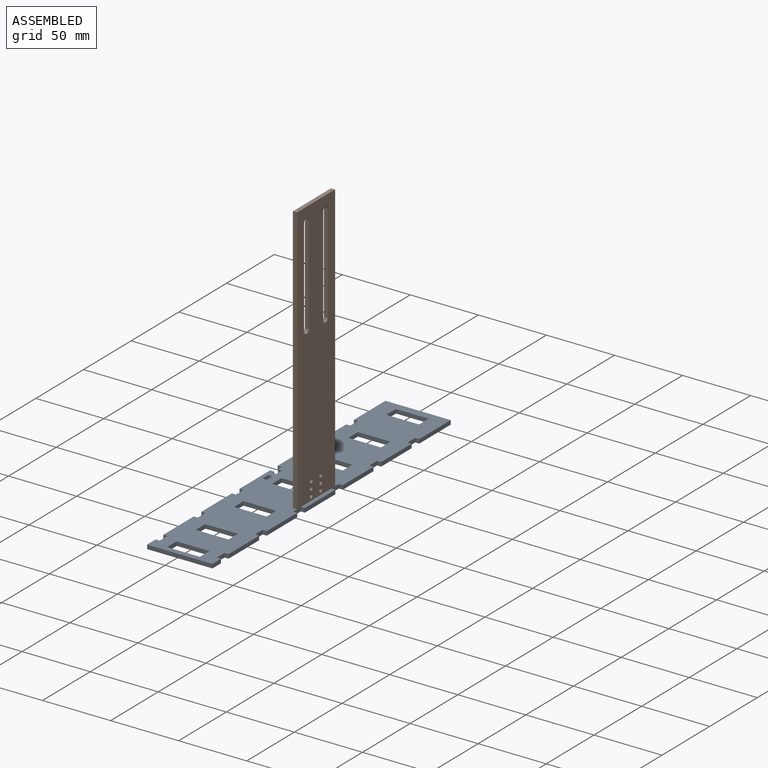
[diagram: assembled view]
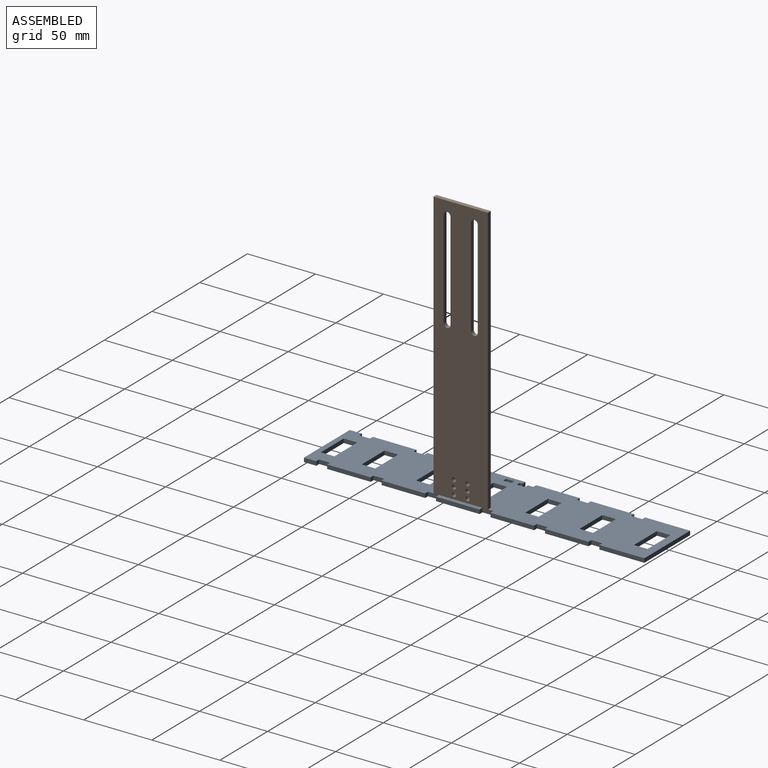
[diagram: assembled view, second angle]
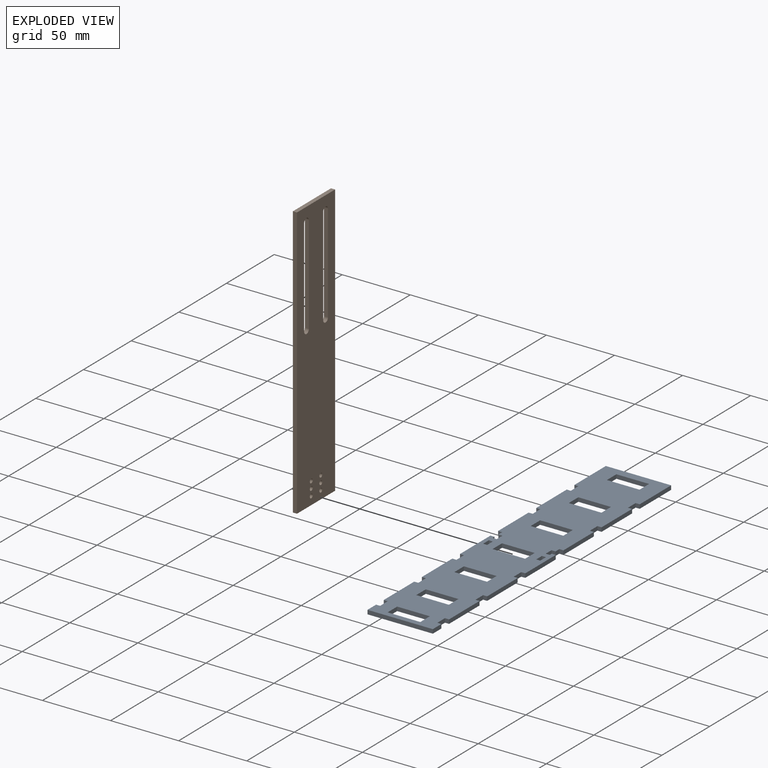
[diagram: exploded view]
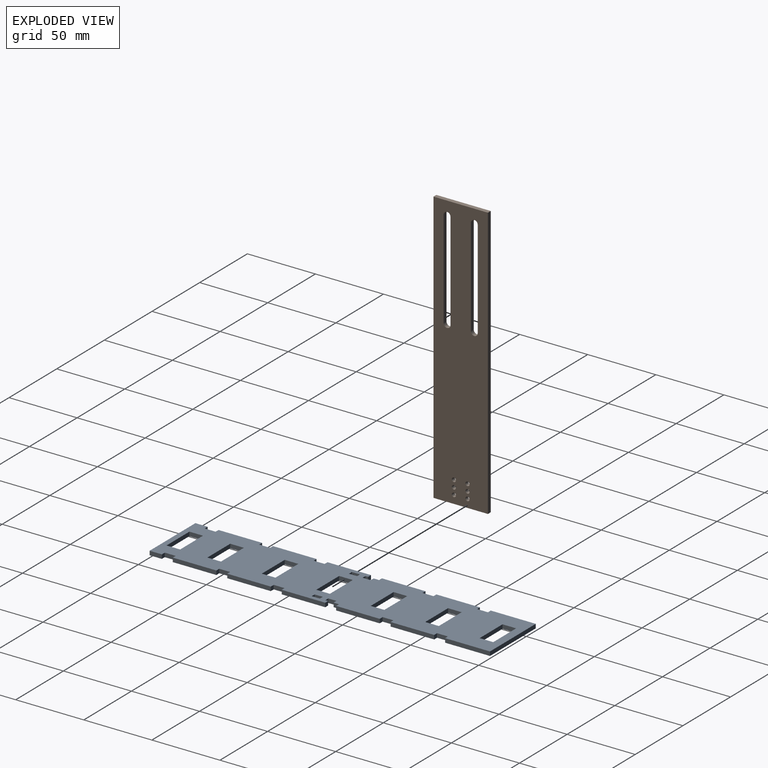
[diagram: exploded view, second angle]
ASSEMBLY  parts=2 mates=3
PART A: 98 faces, bbox 48x250x3 mm
  f0: plane 250x48mm, normal (0,0,1), area 9960mm2, adj f2,f3,f4,f5,f6,f7,f8,f9
  f1: plane 250x48mm, normal (0,0,-1), area 9960mm2, adj f2,f3,f4,f5,f6,f7,f8,f9
  f2: plane 32x3mm, normal (-1,0,0), area 96mm2, adj f0,f1,f41,f51
  f3: plane 32x3mm, normal (-1,0,0), area 96mm2, adj f0,f1,f38,f39
  f4: plane 32x3mm, normal (-1,0,0), area 96mm2, adj f0,f1,f35,f36
  f5: plane 32x3mm, normal (-1,0,0), area 96mm2, adj f0,f1,f32,f33
  f6: plane 32x3mm, normal (-1,0,0), area 96mm2, adj f0,f1,f20,f30
  f7: plane 9x3mm, normal (-1,0,0), area 27mm2, adj f0,f1,f16,f18
  f8: plane 9x3mm, normal (1,0,0), area 27mm2, adj f0,f1,f16,f49
  f9: plane 32x3mm, normal (1,0,0), area 96mm2, adj f0,f1,f46,f50
  f10: plane 32x3mm, normal (1,0,0), area 96mm2, adj f0,f1,f43,f47
  f11: plane 32x3mm, normal (1,0,0), area 96mm2, adj f0,f1,f28,f44
  f12: plane 32x3mm, normal (1,0,0), area 96mm2, adj f0,f1,f25,f29
  f13: plane 32x3mm, normal (1,0,0), area 96mm2, adj f0,f1,f22,f26
  f14: plane 48x3mm, normal (0,1,0), area 144mm2, adj f0,f1,f15,f17
  f15: plane 33x3mm, normal (-1,0,0), area 99mm2, adj f0,f1,f14,f53
  f16: plane 48x3mm, normal (0,-1,0), area 144mm2, adj f0,f1,f7,f8
  f17: plane 33x3mm, normal (1,0,0), area 99mm2, adj f0,f1,f14,f23
  f18: plane 3x3mm, normal (0,1,0), area 9mm2, adj f0,f1,f7,f19
  f19: plane 8x3mm, normal (-1,0,0), area 24mm2, adj f0,f1,f18,f20
  f20: plane 3x3mm, normal (0,-1,0), area 9mm2, adj f0,f1,f6,f19
  f21: plane 8x3mm, normal (1,0,0), area 24mm2, adj f0,f1,f22,f23
  f22: plane 3x3mm, normal (0,1,0), area 9mm2, adj f0,f1,f13,f21
  f23: plane 3x3mm, normal (0,-1,0), area 9mm2, adj f0,f1,f17,f21
  f24: plane 8x3mm, normal (1,0,0), area 24mm2, adj f0,f1,f25,f26
  f25: plane 3x3mm, normal (0,1,0), area 9mm2, adj f0,f1,f12,f24
  f26: plane 3x3mm, normal (0,-1,0), area 9mm2, adj f0,f1,f13,f24
  f27: plane 4x3mm, normal (1,0,0), area 12mm2, adj f0,f1,f29,f87
  f28: plane 3x3mm, normal (0,1,0), area 9mm2, adj f0,f1,f11,f86
  f29: plane 3x3mm, normal (0,-1,0), area 9mm2, adj f0,f1,f12,f27
  f30: plane 3x3mm, normal (0,1,0), area 9mm2, adj f0,f1,f6,f31
  f31: plane 8x3mm, normal (-1,0,0), area 24mm2, adj f0,f1,f30,f32
  f32: plane 3x3mm, normal (0,-1,0), area 9mm2, adj f0,f1,f5,f31
  f33: plane 3x3mm, normal (0,1,0), area 9mm2, adj f0,f1,f5,f34
  f34: plane 8x3mm, normal (-1,0,0), area 24mm2, adj f0,f1,f33,f35
  f35: plane 3x3mm, normal (0,-1,0), area 9mm2, adj f0,f1,f4,f34
  f36: plane 3x3mm, normal (0,1,0), area 9mm2, adj f0,f1,f4,f83
  f37: plane 4x3mm, normal (-1,0,0), area 12mm2, adj f0,f1,f38,f82
  f38: plane 3x3mm, normal (0,-1,0), area 9mm2, adj f0,f1,f3,f37
  f39: plane 3x3mm, normal (0,1,0), area 9mm2, adj f0,f1,f3,f40
  f40: plane 8x3mm, normal (-1,0,0), area 24mm2, adj f0,f1,f39,f41
  f41: plane 3x3mm, normal (0,-1,0), area 9mm2, adj f0,f1,f2,f40
  f42: plane 8x3mm, normal (1,0,0), area 24mm2, adj f0,f1,f43,f44
  f43: plane 3x3mm, normal (0,1,0), area 9mm2, adj f0,f1,f10,f42
  f44: plane 3x3mm, normal (0,-1,0), area 9mm2, adj f0,f1,f11,f42
  f45: plane 8x3mm, normal (1,0,0), area 24mm2, adj f0,f1,f46,f47
  f46: plane 3x3mm, normal (0,1,0), area 9mm2, adj f0,f1,f9,f45
  f47: plane 3x3mm, normal (0,-1,0), area 9mm2, adj f0,f1,f10,f45
  f48: plane 8x3mm, normal (1,0,0), area 24mm2, adj f0,f1,f49,f50
  f49: plane 3x3mm, normal (0,1,0), area 9mm2, adj f0,f1,f8,f48
  f50: plane 3x3mm, normal (0,-1,0), area 9mm2, adj f0,f1,f9,f48
  f51: plane 3x3mm, normal (0,1,0), area 9mm2, adj f0,f1,f2,f52
  f52: plane 8x3mm, normal (-1,0,0), area 24mm2, adj f0,f1,f51,f53
  f53: plane 3x3mm, normal (0,-1,0), area 9mm2, adj f0,f1,f15,f52
  f54: plane 24x3mm, normal (0,-1,0), area 72mm2, adj f0,f1,f55,f57
  f55: plane 10x3mm, normal (1,0,0), area 30mm2, adj f0,f1,f54,f56
  f56: plane 24x3mm, normal (0,1,0), area 72mm2, adj f0,f1,f55,f57
  f57: plane 10x3mm, normal (-1,0,0), area 30mm2, adj f0,f1,f54,f56
  f58: plane 24x3mm, normal (0,-1,0), area 72mm2, adj f0,f1,f59,f61
  f59: plane 10x3mm, normal (1,0,0), area 30mm2, adj f0,f1,f58,f60
  f60: plane 24x3mm, normal (0,1,0), area 72mm2, adj f0,f1,f59,f61
  f61: plane 10x3mm, normal (-1,0,0), area 30mm2, adj f0,f1,f58,f60
  f62: plane 24x3mm, normal (0,-1,0), area 72mm2, adj f0,f1,f63,f65
  f63: plane 10x3mm, normal (1,0,0), area 30mm2, adj f0,f1,f62,f64
  f64: plane 24x3mm, normal (0,1,0), area 72mm2, adj f0,f1,f63,f65
  f65: plane 10x3mm, normal (-1,0,0), area 30mm2, adj f0,f1,f62,f64
  f66: plane 24x3mm, normal (0,-1,0), area 72mm2, adj f0,f1,f67,f69
  f67: plane 10x3mm, normal (1,0,0), area 30mm2, adj f0,f1,f66,f68
  f68: plane 24x3mm, normal (0,1,0), area 72mm2, adj f0,f1,f67,f69
  f69: plane 10x3mm, normal (-1,0,0), area 30mm2, adj f0,f1,f66,f68
  f70: plane 24x3mm, normal (0,-1,0), area 72mm2, adj f0,f1,f71,f73
  f71: plane 10x3mm, normal (1,0,0), area 30mm2, adj f0,f1,f70,f72
  f72: plane 24x3mm, normal (0,1,0), area 72mm2, adj f0,f1,f71,f73
  f73: plane 10x3mm, normal (-1,0,0), area 30mm2, adj f0,f1,f70,f72
  f74: plane 24x3mm, normal (0,-1,0), area 72mm2, adj f0,f1,f75,f77
  f75: plane 10x3mm, normal (1,0,0), area 30mm2, adj f0,f1,f74,f76
  f76: plane 24x3mm, normal (0,1,0), area 72mm2, adj f0,f1,f75,f77
  f77: plane 10x3mm, normal (-1,0,0), area 30mm2, adj f0,f1,f74,f76
  f78: plane 24x3mm, normal (0,-1,0), area 72mm2, adj f0,f1,f79,f81
  f79: plane 10x3mm, normal (1,0,0), area 30mm2, adj f0,f1,f78,f80
  f80: plane 24x3mm, normal (0,1,0), area 72mm2, adj f0,f1,f79,f81
  f81: plane 10x3mm, normal (-1,0,0), area 30mm2, adj f0,f1,f78,f80
  f82: plane 3x3mm, normal (0,-1,0), area 9mm2, adj f0,f1,f37,f85
  f83: plane 3x2mm, normal (1,0,0), area 6mm2, adj f0,f1,f36,f84
  f84: plane 3x3mm, normal (0,1,0), area 9mm2, adj f0,f1,f83,f85
  f85: plane 6x3mm, normal (-1,0,0), area 18mm2, adj f0,f1,f82,f84
  f86: plane 3x2mm, normal (-1,0,0), area 6mm2, adj f0,f1,f28,f89
  f87: plane 3x3mm, normal (0,-1,0), area 9mm2, adj f0,f1,f27,f88
  f88: plane 6x3mm, normal (1,0,0), area 18mm2, adj f0,f1,f87,f89
  f89: plane 3x3mm, normal (0,1,0), area 9mm2, adj f0,f1,f86,f88
  f90: plane 6x3mm, normal (-1,0,0), area 18mm2, adj f0,f1,f91,f93
  f91: plane 3x3mm, normal (0,-1,0), area 9mm2, adj f0,f1,f90,f92
  f92: plane 6x3mm, normal (1,0,0), area 18mm2, adj f0,f1,f91,f93
  f93: plane 3x3mm, normal (0,1,0), area 9mm2, adj f0,f1,f90,f92
  f94: plane 3x3mm, normal (0,-1,0), area 9mm2, adj f0,f1,f95,f97
  f95: plane 6x3mm, normal (1,0,0), area 18mm2, adj f0,f1,f94,f96
  f96: plane 3x3mm, normal (0,1,0), area 9mm2, adj f0,f1,f95,f97
  f97: plane 6x3mm, normal (-1,0,0), area 18mm2, adj f0,f1,f94,f96
PART B: 20 faces, bbox 40x3x200 mm
  f0: plane 200x3mm, normal (-1,0,0), area 600mm2, adj f1,f11,f12,f13
  f1: plane 40x3mm, normal (0,0,-1), area 120mm2, adj f0,f2,f12,f13
  f2: plane 200x3mm, normal (1,0,0), area 600mm2, adj f1,f11,f12,f13
  f3: plane 72x3mm, normal (1,0,0), area 216mm2, adj f4,f9,f12,f13
  f4: cylinder r=2.5mm len=5mm, axis (0,1,0), area 23.6mm2, adj f3,f5,f12,f13
  f5: plane 72x3mm, normal (-1,0,0), area 216mm2, adj f4,f9,f12,f13
  f6: plane 72x3mm, normal (1,0,0), area 216mm2, adj f7,f10,f12,f13
  f7: cylinder r=2.5mm len=5mm, axis (0,1,0), area 23.6mm2, adj f6,f8,f12,f13
  f8: plane 72x3mm, normal (-1,0,0), area 216mm2, adj f7,f10,f12,f13
  f9: cylinder r=2.5mm len=5mm, axis (0,1,0), area 23.6mm2, adj f3,f5,f12,f13
  f10: cylinder r=2.5mm len=5mm, axis (0,1,0), area 23.6mm2, adj f6,f8,f12,f13
  f11: plane 40x3mm, normal (0,0,1), area 120mm2, adj f0,f2,f12,f13
  f12: plane 200x40mm, normal (0,-1,0), area 7198.3mm2, adj f0,f1,f2,f3,f4,f5,f6,f7
  f13: plane 200x40mm, normal (0,1,0), area 7198.3mm2, adj f0,f1,f2,f3,f4,f5,f6,f7
  f14: cylinder r=1.5mm len=3mm, axis (0,-1,0), area 28.3mm2, adj f12,f13
  f15: cylinder r=1.5mm len=3mm, axis (0,-1,0), area 28.3mm2, adj f12,f13
  f16: cylinder r=1.5mm len=3mm, axis (0,-1,0), area 28.3mm2, adj f12,f13
  f17: cylinder r=1.5mm len=3mm, axis (0,-1,0), area 28.3mm2, adj f12,f13
  f18: cylinder r=1.5mm len=3mm, axis (0,-1,0), area 28.3mm2, adj f12,f13
  f19: cylinder r=1.5mm len=3mm, axis (0,-1,0), area 28.3mm2, adj f12,f13
PLACE A t=(-42.05,-20.96,3.48)mm
PLACE B rot(axis=(0,0,-1),90deg) t=(-21.05,-32.96,103.48)mm
MATE planar B.f0 <-> A.f87  axis (0,1,0) through (-22.55,-12.96,103.48)mm
MATE planar B.f13 <-> A.f90  axis (1,0,0) through (-21.05,-32.96,98.31)mm
MATE planar B.f1 <-> A.f1  axis (0,0,-1) through (-22.55,-32.96,3.48)mm
